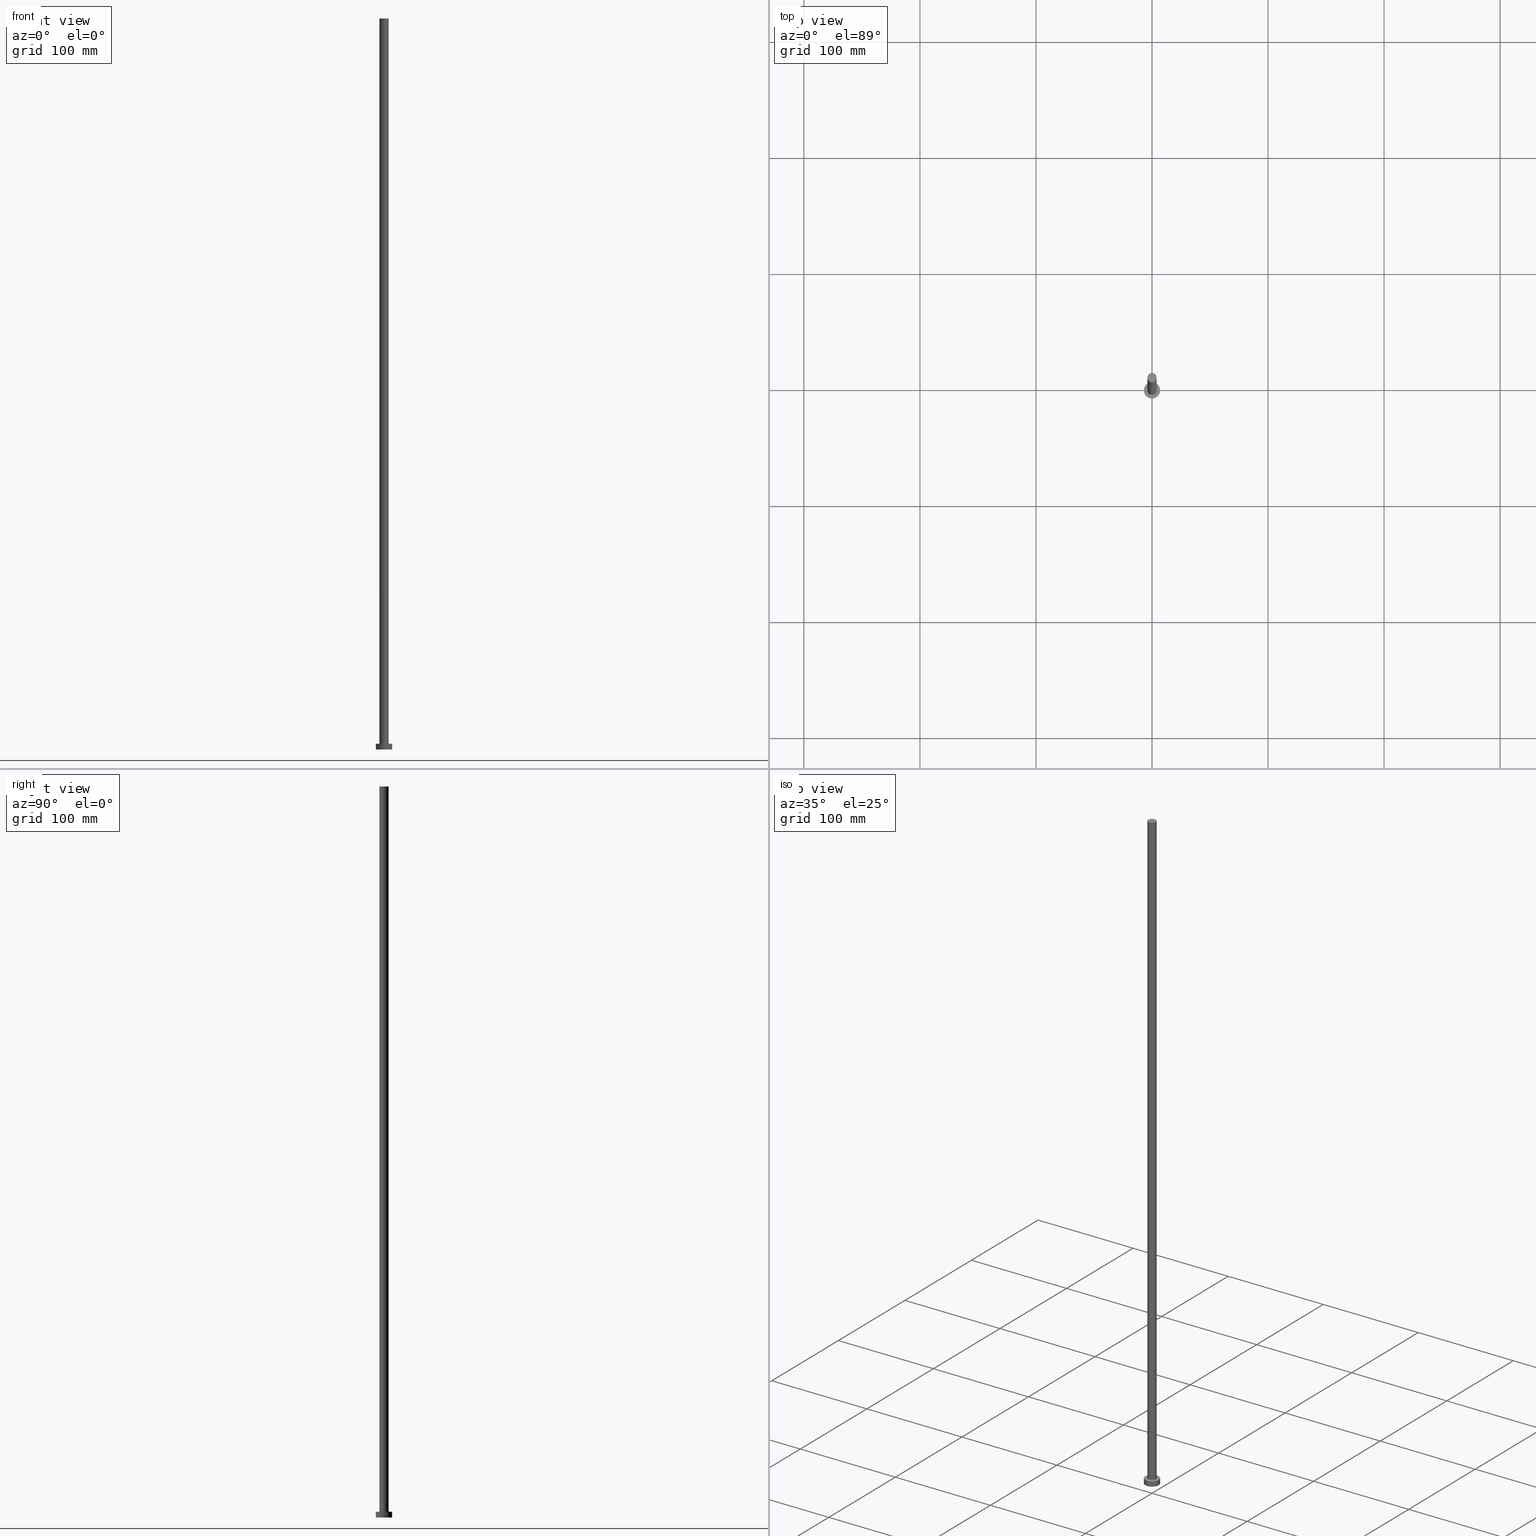
[diagram: canonical four-view strip — front | top / right | iso, engineering-drawing reading convention]
A machine part, canonical four-view strip (front | top / right | iso — engineering-drawing reading convention). The complete STEP part file that produces these views, byte-faithful:
ISO-10303-21;
HEADER;
FILE_DESCRIPTION (( 'STEP AP203' ),
    '1' );
FILE_NAME ('f37e.STEP',
    '2023-02-13T10:54:02',
    ( '' ),
    ( '' ),
    'SwSTEP 2.0',
    'SolidWorks 2019',
    '' );
FILE_SCHEMA (( 'CONFIG_CONTROL_DESIGN' ));
ENDSEC;

DATA;
#1 = DIRECTION ( 'NONE',  ( 1.000000000000000000, 0.000000000000000000, 0.000000000000000000 ) ) ;
#2 = ADVANCED_FACE ( 'NONE', ( #28 ), #182, .F. ) ;
#3 = PERSON_AND_ORGANIZATION_ROLE ( 'classification_officer' ) ;
#4 = EDGE_CURVE ( 'NONE', #244, #136, #160, .T. ) ;
#5 = CARTESIAN_POINT ( 'NONE',  ( 0.000000000000000000, 0.000000000000000000, 5.000000000000000000 ) ) ;
#6 = DIRECTION ( 'NONE',  ( 0.000000000000000000, 0.000000000000000000, 1.000000000000000000 ) ) ;
#7 = CARTESIAN_POINT ( 'NONE',  ( -7.000000000000000000, 0.000000000000000000, 0.000000000000000000 ) ) ;
#8 = AXIS2_PLACEMENT_3D ( 'NONE', #191, #90, #74 ) ;
#9 = ADVANCED_FACE ( 'NONE', ( #223 ), #43, .T. ) ;
#10 = APPROVAL_PERSON_ORGANIZATION ( #228, #46, #143 ) ;
#11 = VERTEX_POINT ( 'NONE', #140 ) ;
#12 = DIRECTION ( 'NONE',  ( 0.000000000000000000, 0.000000000000000000, 1.000000000000000000 ) ) ;
#13 = ORIENTED_EDGE ( 'NONE', *, *, #210, .F. ) ;
#14 = LOCAL_TIME ( 11, 54, 2.000000000000000000, #156 ) ;
#15 = APPROVAL_STATUS ( 'not_yet_approved' ) ;
#16 = SHAPE_DEFINITION_REPRESENTATION ( #122, #56 ) ;
#17 = FACE_BOUND ( 'NONE', #203, .T. ) ;
#18 = DIRECTION ( 'NONE',  ( -0.000000000000000000, -0.000000000000000000, -1.000000000000000000 ) ) ;
#19 = COORDINATED_UNIVERSAL_TIME_OFFSET ( 1, 0, .AHEAD. ) ;
#20 = PERSON_AND_ORGANIZATION ( #93, #107 ) ;
#21 = PRODUCT_DEFINITION_FORMATION_WITH_SPECIFIED_SOURCE ( 'LIBOVOLN�', '', #164, .NOT_KNOWN. ) ;
#22 = AXIS2_PLACEMENT_3D ( 'NONE', #96, #251, #190 ) ;
#23 = ORIENTED_EDGE ( 'NONE', *, *, #210, .T. ) ;
#24 = CC_DESIGN_APPROVAL ( #158, ( #201 ) ) ;
#26 = EDGE_CURVE ( 'NONE', #243, #136, #194, .T. ) ;
#25 = APPROVAL_STATUS ( 'not_yet_approved' ) ;
#27 = CALENDAR_DATE ( 2023, 13, 2 ) ;
#28 = FACE_OUTER_BOUND ( 'NONE', #242, .T. ) ;
#29 = PERSON_AND_ORGANIZATION ( #93, #107 ) ;
#30 = DIRECTION ( 'NONE',  ( 0.000000000000000000, 0.000000000000000000, 1.000000000000000000 ) ) ;
#31 = ORIENTED_EDGE ( 'NONE', *, *, #4, .T. ) ;
#32 = ADVANCED_FACE ( 'NONE', ( #150 ), #169, .T. ) ;
#33 = DIRECTION ( 'NONE',  ( -0.000000000000000000, -0.000000000000000000, -1.000000000000000000 ) ) ;
#34 =( GEOMETRIC_REPRESENTATION_CONTEXT ( 3 ) GLOBAL_UNCERTAINTY_ASSIGNED_CONTEXT ( ( #253 ) ) GLOBAL_UNIT_ASSIGNED_CONTEXT ( ( #89, #154, #55 ) ) REPRESENTATION_CONTEXT ( 'NONE', 'WORKASPACE' ) );
#35 = CARTESIAN_POINT ( 'NONE',  ( 0.000000000000000000, 0.000000000000000000, 630.0000000000000000 ) ) ;
#36 = AXIS2_PLACEMENT_3D ( 'NONE', #211, #81, #235 ) ;
#37 = ADVANCED_FACE ( 'NONE', ( #152 ), #231, .T. ) ;
#38 = CARTESIAN_POINT ( 'NONE',  ( 0.000000000000000000, 0.000000000000000000, 630.0000000000000000 ) ) ;
#39 = CIRCLE ( 'NONE', #83, 4.000000000000000000 ) ;
#40 = EDGE_LOOP ( 'NONE', ( #221, #31, #131, #13 ) ) ;
#41 = PERSON_AND_ORGANIZATION ( #93, #107 ) ;
#42 = ORIENTED_EDGE ( 'NONE', *, *, #71, .T. ) ;
#43 = PLANE ( 'NONE',  #85 ) ;
#44 = EDGE_CURVE ( 'NONE', #105, #244, #129, .T. ) ;
#45 = CARTESIAN_POINT ( 'NONE',  ( 0.000000000000000000, 0.000000000000000000, 0.000000000000000000 ) ) ;
#46 = APPROVAL ( #15, 'NEUR�EN�' ) ;
#47 = PLANE ( 'NONE',  #126 ) ;
#48 = APPROVAL_PERSON_ORGANIZATION ( #41, #181, #64 ) ;
#49 = VECTOR ( 'NONE', #137, 1000.000000000000000 ) ;
#50 = DIRECTION ( 'NONE',  ( 0.000000000000000000, 0.000000000000000000, 1.000000000000000000 ) ) ;
#51 = CARTESIAN_POINT ( 'NONE',  ( -7.000000000000000000, 0.000000000000000000, 5.000000000000000000 ) ) ;
#52 = DIRECTION ( 'NONE',  ( -0.000000000000000000, -0.000000000000000000, -1.000000000000000000 ) ) ;
#53 = EDGE_CURVE ( 'NONE', #79, #125, #101, .T. ) ;
#54 = DIRECTION ( 'NONE',  ( 1.000000000000000000, 0.000000000000000000, 0.000000000000000000 ) ) ;
#55 =( NAMED_UNIT ( * ) SI_UNIT ( $, .STERADIAN. ) SOLID_ANGLE_UNIT ( ) );
#56 = ADVANCED_BREP_SHAPE_REPRESENTATION ( 'f37e', ( #178, #213 ), #34 ) ;
#57 = DIRECTION ( 'NONE',  ( 0.000000000000000000, 0.000000000000000000, 1.000000000000000000 ) ) ;
#58 = APPROVAL_ROLE ( '' ) ;
#59 = DIRECTION ( 'NONE',  ( -1.000000000000000000, 0.000000000000000000, 0.000000000000000000 ) ) ;
#60 = LINE ( 'NONE', #209, #250 ) ;
#61 = EDGE_CURVE ( 'NONE', #125, #11, #60, .T. ) ;
#62 = CIRCLE ( 'NONE', #97, 7.000000000000000000 ) ;
#63 = ORIENTED_EDGE ( 'NONE', *, *, #44, .F. ) ;
#64 = APPROVAL_ROLE ( '' ) ;
#65 = PERSON_AND_ORGANIZATION_ROLE ( 'creator' ) ;
#66 = PERSON_AND_ORGANIZATION_ROLE ( 'design_owner' ) ;
#67 = COORDINATED_UNIVERSAL_TIME_OFFSET ( 1, 0, .AHEAD. ) ;
#68 = AXIS2_PLACEMENT_3D ( 'NONE', #132, #171, #1 ) ;
#69 = CARTESIAN_POINT ( 'NONE',  ( 0.000000000000000000, 0.000000000000000000, 0.000000000000000000 ) ) ;
#70 = CARTESIAN_POINT ( 'NONE',  ( 0.000000000000000000, 0.000000000000000000, 0.000000000000000000 ) ) ;
#71 = EDGE_CURVE ( 'NONE', #244, #105, #62, .T. ) ;
#72 = DIRECTION ( 'NONE',  ( 1.000000000000000000, 0.000000000000000000, -0.000000000000000000 ) ) ;
#73 = EDGE_LOOP ( 'NONE', ( #116, #202 ) ) ;
#74 = DIRECTION ( 'NONE',  ( -1.000000000000000000, 0.000000000000000000, 0.000000000000000000 ) ) ;
#75 = DIRECTION ( 'NONE',  ( 0.000000000000000000, 0.000000000000000000, 1.000000000000000000 ) ) ;
#76 = CARTESIAN_POINT ( 'NONE',  ( 0.000000000000000000, 0.000000000000000000, 5.000000000000000000 ) ) ;
#77 = ORIENTED_EDGE ( 'NONE', *, *, #220, .T. ) ;
#78 = CALENDAR_DATE ( 2023, 13, 2 ) ;
#79 = VERTEX_POINT ( 'NONE', #151 ) ;
#80 = CARTESIAN_POINT ( 'NONE',  ( 0.000000000000000000, 0.000000000000000000, 5.000000000000000000 ) ) ;
#81 = DIRECTION ( 'NONE',  ( -0.000000000000000000, -0.000000000000000000, -1.000000000000000000 ) ) ;
#82 = EDGE_CURVE ( 'NONE', #11, #117, #238, .T. ) ;
#83 = AXIS2_PLACEMENT_3D ( 'NONE', #38, #57, #130 ) ;
#84 = CC_DESIGN_SECURITY_CLASSIFICATION ( #180, ( #21 ) ) ;
#85 = AXIS2_PLACEMENT_3D ( 'NONE', #161, #162, #72 ) ;
#86 = DIRECTION ( 'NONE',  ( 0.000000000000000000, 0.000000000000000000, 1.000000000000000000 ) ) ;
#87 = ORIENTED_EDGE ( 'NONE', *, *, #174, .F. ) ;
#88 = DIRECTION ( 'NONE',  ( 0.000000000000000000, 0.000000000000000000, 1.000000000000000000 ) ) ;
#89 =( LENGTH_UNIT ( ) NAMED_UNIT ( * ) SI_UNIT ( .MILLI., .METRE. ) );
#90 = DIRECTION ( 'NONE',  ( -0.000000000000000000, -0.000000000000000000, -1.000000000000000000 ) ) ;
#91 = DIRECTION ( 'NONE',  ( 1.000000000000000000, 0.000000000000000000, 0.000000000000000000 ) ) ;
#92 = DIRECTION ( 'NONE',  ( 1.000000000000000000, 0.000000000000000000, -0.000000000000000000 ) ) ;
#93 = PERSON ( 'NEUR�EN�', 'NEUR�EN�', 'NEUR�EN�', ('NEUR�EN�'), ('NEUR�EN�'), ('NEUR�EN�') ) ;
#94 = FACE_OUTER_BOUND ( 'NONE', #40, .T. ) ;
#95 = CC_DESIGN_PERSON_AND_ORGANIZATION_ASSIGNMENT ( #104, #3, ( #180 ) ) ;
#96 = CARTESIAN_POINT ( 'NONE',  ( 0.000000000000000000, 0.000000000000000000, 5.000000000000000000 ) ) ;
#97 = AXIS2_PLACEMENT_3D ( 'NONE', #80, #30, #216 ) ;
#98 = SECURITY_CLASSIFICATION_LEVEL ( 'unclassified' ) ;
#99 = DIRECTION ( 'NONE',  ( -0.000000000000000000, -0.000000000000000000, -1.000000000000000000 ) ) ;
#100 = CALENDAR_DATE ( 2023, 13, 2 ) ;
#101 = CIRCLE ( 'NONE', #167, 4.000000000000000000 ) ;
#102 = APPROVAL_DATE_TIME ( #184, #181 ) ;
#103 = CARTESIAN_POINT ( 'NONE',  ( 7.000000000000000000, 8.572527594031473190E-16, 0.000000000000000000 ) ) ;
#104 = PERSON_AND_ORGANIZATION ( #93, #107 ) ;
#105 = VERTEX_POINT ( 'NONE', #51 ) ;
#106 = CC_DESIGN_PERSON_AND_ORGANIZATION_ASSIGNMENT ( #29, #112, ( #21 ) ) ;
#107 = ORGANIZATION ( 'NEUR�EN�', 'NEUR�EN�', '' ) ;
#108 = ORIENTED_EDGE ( 'NONE', *, *, #220, .F. ) ;
#109 = CIRCLE ( 'NONE', #254, 4.000000000000000000 ) ;
#110 = LOCAL_TIME ( 11, 54, 2.000000000000000000, #19 ) ;
#111 = DATE_TIME_ROLE ( 'classification_date' ) ;
#112 = PERSON_AND_ORGANIZATION_ROLE ( 'design_supplier' ) ;
#113 = AXIS2_PLACEMENT_3D ( 'NONE', #70, #88, #163 ) ;
#114 = ADVANCED_FACE ( 'NONE', ( #17, #146 ), #47, .T. ) ;
#115 = ADVANCED_FACE ( 'NONE', ( #94 ), #128, .T. ) ;
#116 = ORIENTED_EDGE ( 'NONE', *, *, #166, .T. ) ;
#117 = VERTEX_POINT ( 'NONE', #225 ) ;
#118 = CLOSED_SHELL ( 'NONE', ( #192, #115, #37, #114, #2, #32, #9 ) ) ;
#119 = CARTESIAN_POINT ( 'NONE',  ( 7.000000000000000000, 8.572527594031473190E-16, 5.000000000000000000 ) ) ;
#120 = DIRECTION ( 'NONE',  ( 1.000000000000000000, 0.000000000000000000, -0.000000000000000000 ) ) ;
#121 = DIRECTION ( 'NONE',  ( 0.000000000000000000, 0.000000000000000000, 1.000000000000000000 ) ) ;
#122 = PRODUCT_DEFINITION_SHAPE ( 'NONE', 'NONE',  #201 ) ;
#123 = ORIENTED_EDGE ( 'NONE', *, *, #174, .T. ) ;
#124 = PERSON_AND_ORGANIZATION_ROLE ( 'creator' ) ;
#125 = VERTEX_POINT ( 'NONE', #135 ) ;
#126 = AXIS2_PLACEMENT_3D ( 'NONE', #76, #50, #92 ) ;
#127 = ORIENTED_EDGE ( 'NONE', *, *, #26, .T. ) ;
#128 = CYLINDRICAL_SURFACE ( 'NONE', #8, 7.000000000000000000 ) ;
#129 = CIRCLE ( 'NONE', #68, 7.000000000000000000 ) ;
#130 = DIRECTION ( 'NONE',  ( 1.000000000000000000, 0.000000000000000000, 0.000000000000000000 ) ) ;
#131 = ORIENTED_EDGE ( 'NONE', *, *, #179, .T. ) ;
#132 = CARTESIAN_POINT ( 'NONE',  ( 0.000000000000000000, 0.000000000000000000, 5.000000000000000000 ) ) ;
#133 = LOCAL_TIME ( 11, 54, 2.000000000000000000, #176 ) ;
#134 = AXIS2_PLACEMENT_3D ( 'NONE', #69, #6, #120 ) ;
#135 = CARTESIAN_POINT ( 'NONE',  ( -4.000000000000000000, 0.000000000000000000, 630.0000000000000000 ) ) ;
#136 = VERTEX_POINT ( 'NONE', #103 ) ;
#137 = DIRECTION ( 'NONE',  ( -0.000000000000000000, -0.000000000000000000, -1.000000000000000000 ) ) ;
#138 = CC_DESIGN_DATE_AND_TIME_ASSIGNMENT ( #157, #241, ( #201 ) ) ;
#139 = ORIENTED_EDGE ( 'NONE', *, *, #4, .F. ) ;
#140 = CARTESIAN_POINT ( 'NONE',  ( -4.000000000000000000, 0.000000000000000000, 5.000000000000000000 ) ) ;
#141 = ORIENTED_EDGE ( 'NONE', *, *, #82, .F. ) ;
#142 = PRODUCT_RELATED_PRODUCT_CATEGORY ( 'detail', '', ( #164 ) ) ;
#143 = APPROVAL_ROLE ( '' ) ;
#144 = CYLINDRICAL_SURFACE ( 'NONE', #219, 4.000000000000000000 ) ;
#145 = APPLICATION_PROTOCOL_DEFINITION ( 'international standard', 'config_control_design', 1994, #172 ) ;
#146 = FACE_OUTER_BOUND ( 'NONE', #217, .T. ) ;
#147 = EDGE_LOOP ( 'NONE', ( #139, #63, #23, #127 ) ) ;
#148 = FACE_OUTER_BOUND ( 'NONE', #229, .T. ) ;
#149 = CARTESIAN_POINT ( 'NONE',  ( 0.000000000000000000, 0.000000000000000000, 0.000000000000000000 ) ) ;
#150 = FACE_OUTER_BOUND ( 'NONE', #224, .T. ) ;
#151 = CARTESIAN_POINT ( 'NONE',  ( 4.000000000000000000, 4.898587196589412829E-16, 630.0000000000000000 ) ) ;
#152 = FACE_OUTER_BOUND ( 'NONE', #147, .T. ) ;
#153 = APPLICATION_PROTOCOL_DEFINITION ( 'international standard', 'config_control_design', 1994, #230 ) ;
#154 =( NAMED_UNIT ( * ) PLANE_ANGLE_UNIT ( ) SI_UNIT ( $, .RADIAN. ) );
#155 = AXIS2_PLACEMENT_3D ( 'NONE', #45, #121, #91 ) ;
#156 = COORDINATED_UNIVERSAL_TIME_OFFSET ( 1, 0, .AHEAD. ) ;
#157 = DATE_AND_TIME ( #239, #165 ) ;
#158 = APPROVAL ( #255, 'NEUR�EN�' ) ;
#159 = ORIENTED_EDGE ( 'NONE', *, *, #179, .F. ) ;
#160 = LINE ( 'NONE', #204, #49 ) ;
#161 = CARTESIAN_POINT ( 'NONE',  ( 0.000000000000000000, 0.000000000000000000, 630.0000000000000000 ) ) ;
#162 = DIRECTION ( 'NONE',  ( 0.000000000000000000, 0.000000000000000000, 1.000000000000000000 ) ) ;
#163 = DIRECTION ( 'NONE',  ( 1.000000000000000000, 0.000000000000000000, 0.000000000000000000 ) ) ;
#164 = PRODUCT ( 'f37e', 'f37e', '', ( #215 ) ) ;
#165 = LOCAL_TIME ( 11, 54, 2.000000000000000000, #218 ) ;
#166 = EDGE_CURVE ( 'NONE', #125, #79, #39, .T. ) ;
#167 = AXIS2_PLACEMENT_3D ( 'NONE', #35, #12, #54 ) ;
#168 = APPROVAL_DATE_TIME ( #236, #46 ) ;
#169 = CYLINDRICAL_SURFACE ( 'NONE', #36, 4.000000000000000000 ) ;
#170 = PERSON_AND_ORGANIZATION ( #93, #107 ) ;
#171 = DIRECTION ( 'NONE',  ( 0.000000000000000000, 0.000000000000000000, 1.000000000000000000 ) ) ;
#172 = APPLICATION_CONTEXT ( 'configuration controlled 3d designs of mechanical parts and assemblies' ) ;
#173 = APPROVAL_DATE_TIME ( #193, #158 ) ;
#174 = EDGE_CURVE ( 'NONE', #79, #117, #200, .T. ) ;
#175 = ORIENTED_EDGE ( 'NONE', *, *, #26, .F. ) ;
#176 = COORDINATED_UNIVERSAL_TIME_OFFSET ( 1, 0, .AHEAD. ) ;
#177 = CALENDAR_DATE ( 2023, 13, 2 ) ;
#178 = MANIFOLD_SOLID_BREP ( 'P�idat vysunut�m3', #118 ) ;
#179 = EDGE_CURVE ( 'NONE', #136, #243, #226, .T. ) ;
#180 = SECURITY_CLASSIFICATION ( '', '', #98 ) ;
#181 = APPROVAL ( #25, 'NEUR�EN�' ) ;
#182 = PLANE ( 'NONE',  #134 ) ;
#183 = DIRECTION ( 'NONE',  ( 1.000000000000000000, 0.000000000000000000, 0.000000000000000000 ) ) ;
#184 = DATE_AND_TIME ( #27, #198 ) ;
#185 = VECTOR ( 'NONE', #247, 1000.000000000000000 ) ;
#186 = ORIENTED_EDGE ( 'NONE', *, *, #44, .T. ) ;
#187 = PERSON_AND_ORGANIZATION ( #93, #107 ) ;
#188 = CC_DESIGN_PERSON_AND_ORGANIZATION_ASSIGNMENT ( #240, #65, ( #201 ) ) ;
#189 = CARTESIAN_POINT ( 'NONE',  ( -7.000000000000000000, 0.000000000000000000, 5.000000000000000000 ) ) ;
#190 = DIRECTION ( 'NONE',  ( 1.000000000000000000, 0.000000000000000000, 0.000000000000000000 ) ) ;
#191 = CARTESIAN_POINT ( 'NONE',  ( 0.000000000000000000, 0.000000000000000000, 5.000000000000000000 ) ) ;
#192 = ADVANCED_FACE ( 'NONE', ( #148 ), #144, .T. ) ;
#193 = DATE_AND_TIME ( #177, #133 ) ;
#194 = CIRCLE ( 'NONE', #155, 7.000000000000000000 ) ;
#195 = CARTESIAN_POINT ( 'NONE',  ( 0.000000000000000000, 0.000000000000000000, 630.0000000000000000 ) ) ;
#196 = ORIENTED_EDGE ( 'NONE', *, *, #53, .F. ) ;
#197 = DESIGN_CONTEXT ( 'detailed design', #230, 'design' ) ;
#198 = LOCAL_TIME ( 11, 54, 2.000000000000000000, #67 ) ;
#199 = ORIENTED_EDGE ( 'NONE', *, *, #166, .F. ) ;
#200 = LINE ( 'NONE', #222, #185 ) ;
#201 = PRODUCT_DEFINITION ( 'NEZN�M�', '', #21, #197 ) ;
#202 = ORIENTED_EDGE ( 'NONE', *, *, #53, .T. ) ;
#203 = EDGE_LOOP ( 'NONE', ( #141, #108 ) ) ;
#204 = CARTESIAN_POINT ( 'NONE',  ( 7.000000000000000000, 8.572527594031473190E-16, 5.000000000000000000 ) ) ;
#205 = CC_DESIGN_PERSON_AND_ORGANIZATION_ASSIGNMENT ( #187, #124, ( #21 ) ) ;
#206 = ORIENTED_EDGE ( 'NONE', *, *, #61, .F. ) ;
#207 = DIRECTION ( 'NONE',  ( 1.000000000000000000, 0.000000000000000000, 0.000000000000000000 ) ) ;
#208 = LINE ( 'NONE', #189, #237 ) ;
#209 = CARTESIAN_POINT ( 'NONE',  ( -4.000000000000000000, 0.000000000000000000, 630.0000000000000000 ) ) ;
#210 = EDGE_CURVE ( 'NONE', #105, #243, #208, .T. ) ;
#211 = CARTESIAN_POINT ( 'NONE',  ( 0.000000000000000000, 0.000000000000000000, 630.0000000000000000 ) ) ;
#212 = DIRECTION ( 'NONE',  ( -1.000000000000000000, 0.000000000000000000, 0.000000000000000000 ) ) ;
#213 = AXIS2_PLACEMENT_3D ( 'NONE', #149, #75, #207 ) ;
#214 = DATE_AND_TIME ( #78, #14 ) ;
#215 = MECHANICAL_CONTEXT ( 'NONE', #172, 'mechanical' ) ;
#216 = DIRECTION ( 'NONE',  ( 1.000000000000000000, 0.000000000000000000, 0.000000000000000000 ) ) ;
#217 = EDGE_LOOP ( 'NONE', ( #186, #42 ) ) ;
#218 = COORDINATED_UNIVERSAL_TIME_OFFSET ( 1, 0, .AHEAD. ) ;
#219 = AXIS2_PLACEMENT_3D ( 'NONE', #195, #18, #212 ) ;
#220 = EDGE_CURVE ( 'NONE', #117, #11, #109, .T. ) ;
#221 = ORIENTED_EDGE ( 'NONE', *, *, #71, .F. ) ;
#222 = CARTESIAN_POINT ( 'NONE',  ( 4.000000000000000000, 4.898587196589412829E-16, 630.0000000000000000 ) ) ;
#223 = FACE_OUTER_BOUND ( 'NONE', #73, .T. ) ;
#224 = EDGE_LOOP ( 'NONE', ( #87, #199, #245, #252 ) ) ;
#225 = CARTESIAN_POINT ( 'NONE',  ( 4.000000000000000000, 4.898587196589412829E-16, 5.000000000000000000 ) ) ;
#226 = CIRCLE ( 'NONE', #113, 7.000000000000000000 ) ;
#227 = CC_DESIGN_APPROVAL ( #46, ( #180 ) ) ;
#228 = PERSON_AND_ORGANIZATION ( #93, #107 ) ;
#229 = EDGE_LOOP ( 'NONE', ( #196, #123, #77, #206 ) ) ;
#230 = APPLICATION_CONTEXT ( 'configuration controlled 3d designs of mechanical parts and assemblies' ) ;
#231 = CYLINDRICAL_SURFACE ( 'NONE', #246, 7.000000000000000000 ) ;
#232 = CC_DESIGN_DATE_AND_TIME_ASSIGNMENT ( #214, #111, ( #180 ) ) ;
#233 = CC_DESIGN_APPROVAL ( #181, ( #21 ) ) ;
#234 = CARTESIAN_POINT ( 'NONE',  ( 0.000000000000000000, 0.000000000000000000, 5.000000000000000000 ) ) ;
#235 = DIRECTION ( 'NONE',  ( -1.000000000000000000, 0.000000000000000000, 0.000000000000000000 ) ) ;
#236 = DATE_AND_TIME ( #100, #110 ) ;
#237 = VECTOR ( 'NONE', #52, 1000.000000000000000 ) ;
#238 = CIRCLE ( 'NONE', #22, 4.000000000000000000 ) ;
#239 = CALENDAR_DATE ( 2023, 13, 2 ) ;
#240 = PERSON_AND_ORGANIZATION ( #93, #107 ) ;
#241 = DATE_TIME_ROLE ( 'creation_date' ) ;
#242 = EDGE_LOOP ( 'NONE', ( #175, #159 ) ) ;
#243 = VERTEX_POINT ( 'NONE', #7 ) ;
#244 = VERTEX_POINT ( 'NONE', #119 ) ;
#245 = ORIENTED_EDGE ( 'NONE', *, *, #61, .T. ) ;
#246 = AXIS2_PLACEMENT_3D ( 'NONE', #234, #99, #59 ) ;
#247 = DIRECTION ( 'NONE',  ( -0.000000000000000000, -0.000000000000000000, -1.000000000000000000 ) ) ;
#248 = CC_DESIGN_PERSON_AND_ORGANIZATION_ASSIGNMENT ( #20, #66, ( #164 ) ) ;
#249 = APPROVAL_PERSON_ORGANIZATION ( #170, #158, #58 ) ;
#250 = VECTOR ( 'NONE', #33, 1000.000000000000000 ) ;
#251 = DIRECTION ( 'NONE',  ( 0.000000000000000000, 0.000000000000000000, 1.000000000000000000 ) ) ;
#252 = ORIENTED_EDGE ( 'NONE', *, *, #82, .T. ) ;
#253 = UNCERTAINTY_MEASURE_WITH_UNIT (LENGTH_MEASURE( 1.000000000000000082E-05 ), #89, 'distance_accuracy_value', 'NONE');
#254 = AXIS2_PLACEMENT_3D ( 'NONE', #5, #86, #183 ) ;
#255 = APPROVAL_STATUS ( 'not_yet_approved' ) ;
ENDSEC;
END-ISO-10303-21;
